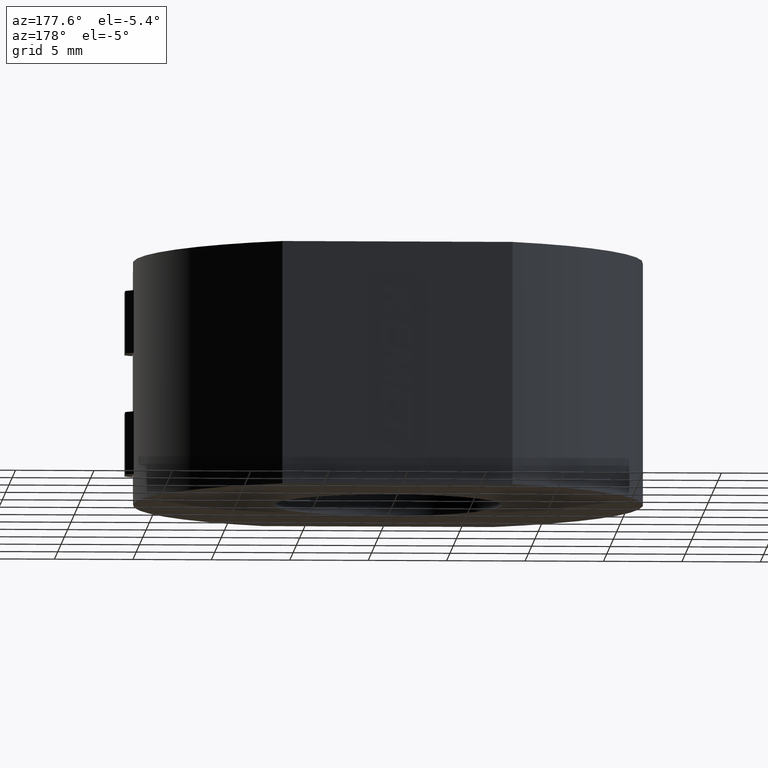
[diagram: clean part render]
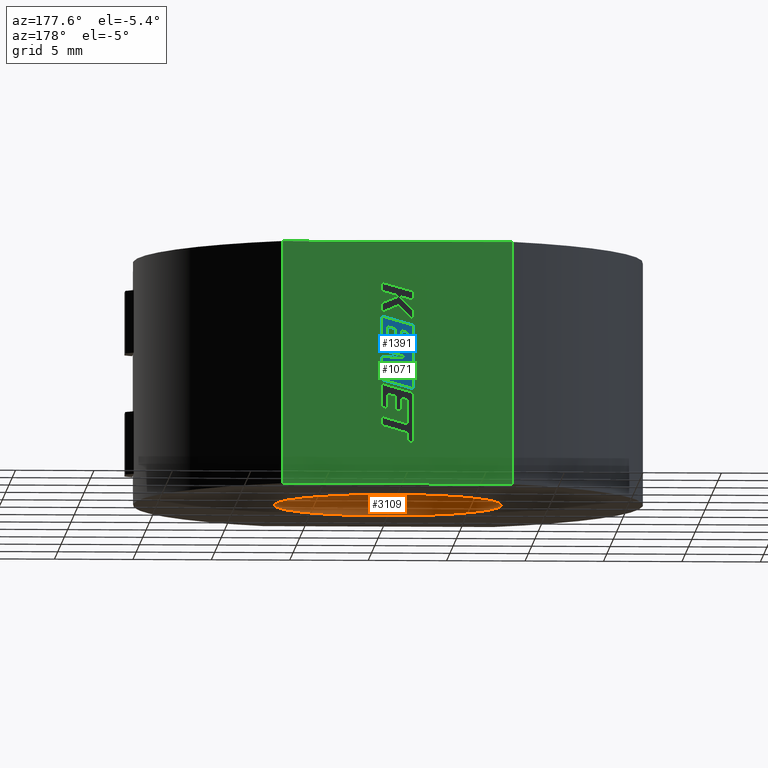
[diagram: same view with three faces highlighted in distinct colors, each labeled with its STEP entity id]
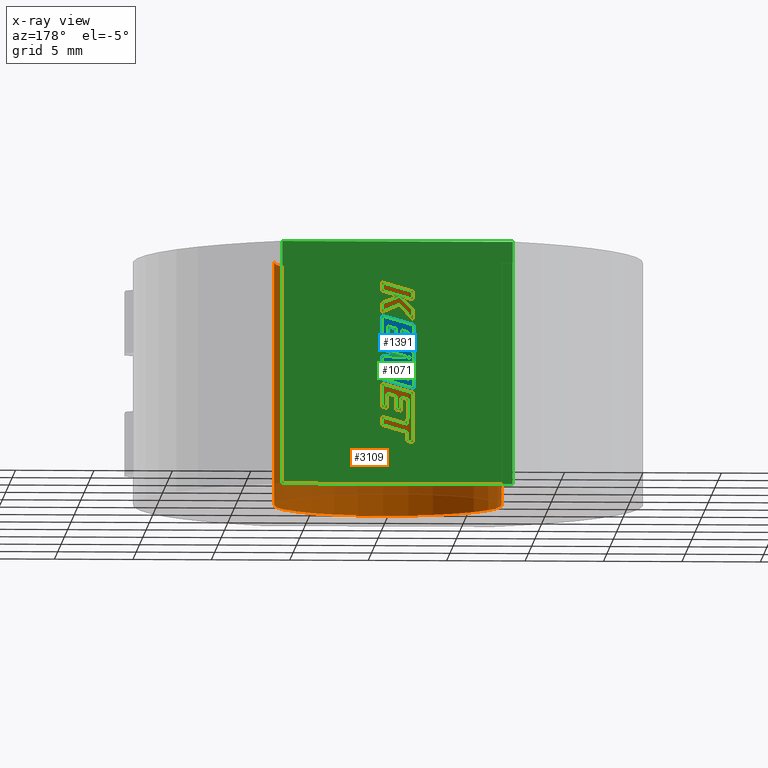
[diagram: x-ray of the same camera — body ghosted, the three highlighted faces saturated]
A machine part, auxiliary view with three faces highlighted in distinct colors.
The next image is the same camera in x-ray (body ghosted, the three faces saturated) — at least one of them is partly hidden behind the body in this view.
Their STEP definitions:

[orange] entity #3109 — the highlighted cylindrical surface (partial cylindrical patch) has radius 7.25 mm, axis along (-0, -0, 1).
#21 = VERTEX_POINT ( 'NONE', #654 ) ;
#174 = AXIS2_PLACEMENT_3D ( 'NONE', #1175, #1947, #514 ) ;
#180 = DIRECTION ( 'NONE',  ( 0.0000000000000000000, 0.0000000000000000000, 1.000000000000000000 ) ) ;
#189 = VECTOR ( 'NONE', #1733, 1000.000000000000000 ) ;
#244 = ORIENTED_EDGE ( 'NONE', *, *, #2995, .T. ) ;
#325 = EDGE_CURVE ( 'NONE', #21, #2164, #2602, .T. ) ;
#394 = VERTEX_POINT ( 'NONE', #2286 ) ;
#497 = FACE_OUTER_BOUND ( 'NONE', #1165, .T. ) ;
#514 = DIRECTION ( 'NONE',  ( 1.000000000000000000, 0.0000000000000000000, 0.0000000000000000000 ) ) ;
#654 = CARTESIAN_POINT ( 'NONE',  ( -7.249993103444997400, -0.01000000000000000000, -7.750000000000000000 ) ) ;
#672 = DIRECTION ( 'NONE',  ( -0.0000000000000000000, -0.0000000000000000000, 1.000000000000000000 ) ) ;
#795 = LINE ( 'NONE', #1464, #189 ) ;
#825 = ORIENTED_EDGE ( 'NONE', *, *, #2112, .T. ) ;
#1083 = AXIS2_PLACEMENT_3D ( 'NONE', #2085, #180, #1294 ) ;
#1165 = EDGE_LOOP ( 'NONE', ( #244, #2049, #2525, #825 ) ) ;
#1169 = LINE ( 'NONE', #2131, #1773 ) ;
#1175 = CARTESIAN_POINT ( 'NONE',  ( 0.0000000000000000000, 0.0000000000000000000, -7.750000000000000000 ) ) ;
#1294 = DIRECTION ( 'NONE',  ( 1.000000000000000000, 0.0000000000000000000, 0.0000000000000000000 ) ) ;
#1441 = CYLINDRICAL_SURFACE ( 'NONE', #174, 7.250000000000000900 ) ;
#1460 = EDGE_CURVE ( 'NONE', #3015, #2164, #795, .T. ) ;
#1464 = CARTESIAN_POINT ( 'NONE',  ( 7.249993103444997400, -0.01000000000000000000, -7.750000000000000000 ) ) ;
#1623 = DIRECTION ( 'NONE',  ( 0.0000000000000000000, 0.0000000000000000000, 1.000000000000000000 ) ) ;
#1733 = DIRECTION ( 'NONE',  ( 0.0000000000000000000, 0.0000000000000000000, -1.000000000000000000 ) ) ;
#1773 = VECTOR ( 'NONE', #672, 1000.000000000000000 ) ;
#1888 = DIRECTION ( 'NONE',  ( 1.000000000000000000, 0.0000000000000000000, 0.0000000000000000000 ) ) ;
#1947 = DIRECTION ( 'NONE',  ( -0.0000000000000000000, -0.0000000000000000000, 1.000000000000000000 ) ) ;
#2049 = ORIENTED_EDGE ( 'NONE', *, *, #1460, .T. ) ;
#2085 = CARTESIAN_POINT ( 'NONE',  ( 0.0000000000000000000, 0.0000000000000000000, -7.750000000000000000 ) ) ;
#2112 = EDGE_CURVE ( 'NONE', #21, #394, #1169, .T. ) ;
#2131 = CARTESIAN_POINT ( 'NONE',  ( -7.249993103444997400, -0.01000000000000000000, -7.750000000000000000 ) ) ;
#2164 = VERTEX_POINT ( 'NONE', #2461 ) ;
#2286 = CARTESIAN_POINT ( 'NONE',  ( -7.249993103444997400, -0.01000000000000000000, 7.750000000000000000 ) ) ;
#2322 = AXIS2_PLACEMENT_3D ( 'NONE', #2624, #1623, #1888 ) ;
#2461 = CARTESIAN_POINT ( 'NONE',  ( 7.249993103444997400, -0.01000000000000000000, -7.750000000000000000 ) ) ;
#2525 = ORIENTED_EDGE ( 'NONE', *, *, #325, .F. ) ;
#2595 = CARTESIAN_POINT ( 'NONE',  ( 7.249993103444997400, -0.01000000000000000000, 7.750000000000000000 ) ) ;
#2602 = CIRCLE ( 'NONE', #1083, 7.250000000000000900 ) ;
#2624 = CARTESIAN_POINT ( 'NONE',  ( 0.0000000000000000000, 0.0000000000000000000, 7.750000000000000000 ) ) ;
#2750 = CIRCLE ( 'NONE', #2322, 7.250000000000000900 ) ;
#2995 = EDGE_CURVE ( 'NONE', #394, #3015, #2750, .T. ) ;
#3015 = VERTEX_POINT ( 'NONE', #2595 ) ;
#3109 = ADVANCED_FACE ( 'NONE', ( #497 ), #1441, .F. ) ;

[blue] entity #1391 — the highlighted planar face has unit normal (0, -1, 0).
#5 = DIRECTION ( 'NONE',  ( -0.8843386665637480400, 0.0000000000000000000, -0.4668459304955458500 ) ) ;
#24 = EDGE_CURVE ( 'NONE', #889, #1449, #2173, .T. ) ;
#30 = ORIENTED_EDGE ( 'NONE', *, *, #797, .T. ) ;
#83 = LINE ( 'NONE', #2355, #2572 ) ;
#86 = VERTEX_POINT ( 'NONE', #3073 ) ;
#88 = LINE ( 'NONE', #1852, #608 ) ;
#159 = LINE ( 'NONE', #1498, #2292 ) ;
#164 = VERTEX_POINT ( 'NONE', #1387 ) ;
#166 = LINE ( 'NONE', #2370, #2611 ) ;
#173 = ORIENTED_EDGE ( 'NONE', *, *, #2711, .T. ) ;
#204 = EDGE_CURVE ( 'NONE', #2577, #1924, #1793, .T. ) ;
#225 = ORIENTED_EDGE ( 'NONE', *, *, #1748, .T. ) ;
#248 = CARTESIAN_POINT ( 'NONE',  ( -0.7957143564223869700, 14.50100307692278500, -1.094137763419983400 ) ) ;
#269 = CARTESIAN_POINT ( 'NONE',  ( 1.007855826643659500, 14.50100307692278500, -1.088546913478903900 ) ) ;
#317 = CARTESIAN_POINT ( 'NONE',  ( 1.007855826643659500, 14.50100307692278500, -1.088546913478903900 ) ) ;
#324 = ORIENTED_EDGE ( 'NONE', *, *, #1921, .T. ) ;
#329 = DIRECTION ( 'NONE',  ( 0.0000000000000000000, -0.0000000000000000000, -1.000000000000000000 ) ) ;
#340 = EDGE_CURVE ( 'NONE', #1993, #889, #2938, .T. ) ;
#375 = CARTESIAN_POINT ( 'NONE',  ( -0.6245313588817764700, 14.50100307692278500, 1.940185694840126200 ) ) ;
#399 = EDGE_CURVE ( 'NONE', #1084, #445, #2026, .T. ) ;
#404 = DIRECTION ( 'NONE',  ( 0.9984327301130230300, 0.0000000000000000000, 0.05596501978071044500 ) ) ;
#415 = CARTESIAN_POINT ( 'NONE',  ( -0.2495275512025849600, 14.50100307692278500, 1.183949676477196200 ) ) ;
#445 = VERTEX_POINT ( 'NONE', #1896 ) ;
#448 = ORIENTED_EDGE ( 'NONE', *, *, #1306, .T. ) ;
#468 = CARTESIAN_POINT ( 'NONE',  ( 0.6242818345106383400, 14.50100307692278500, 2.298416952705240500 ) ) ;
#496 = CARTESIAN_POINT ( 'NONE',  ( -1.008295390866697200, 14.50100307692278500, -0.1470968788655744900 ) ) ;
#504 = CARTESIAN_POINT ( 'NONE',  ( -0.7870706081621163800, 14.50100307692278500, 0.2948512794877773400 ) ) ;
#516 = EDGE_CURVE ( 'NONE', #1449, #2084, #1022, .T. ) ;
#532 = LINE ( 'NONE', #1777, #3016 ) ;
#535 = LINE ( 'NONE', #2020, #2647 ) ;
#546 = DIRECTION ( 'NONE',  ( -0.9619530280415625700, 0.0000000000000000000, -0.2732148821745782900 ) ) ;
#556 = VERTEX_POINT ( 'NONE', #1658 ) ;
#574 = DIRECTION ( 'NONE',  ( 0.9610853065513875700, 0.0000000000000000000, 0.2762517575166268400 ) ) ;
#578 = DIRECTION ( 'NONE',  ( -0.9615454294334484500, 0.0000000000000000000, -0.2746459304916877300 ) ) ;
#608 = VECTOR ( 'NONE', #948, 1000.000000000000000 ) ;
#614 = CARTESIAN_POINT ( 'NONE',  ( -1.008295390866697200, 14.50100307692278500, 0.9126095447852117200 ) ) ;
#634 = LINE ( 'NONE', #1508, #1514 ) ;
#645 = CARTESIAN_POINT ( 'NONE',  ( -1.008295390866697000, 14.50100307692278500, 2.402074498369834100 ) ) ;
#650 = DIRECTION ( 'NONE',  ( 1.455827704943588000E-016, 0.0000000000000000000, 1.000000000000000000 ) ) ;
#722 = EDGE_CURVE ( 'NONE', #86, #2577, #159, .T. ) ;
#733 = EDGE_CURVE ( 'NONE', #2562, #1202, #535, .T. ) ;
#740 = DIRECTION ( 'NONE',  ( 0.0000000000000000000, -1.000000000000000000, 0.0000000000000000000 ) ) ;
#773 = VECTOR ( 'NONE', #2773, 999.9999999999998900 ) ;
#797 = EDGE_CURVE ( 'NONE', #2237, #3017, #634, .T. ) ;
#816 = VERTEX_POINT ( 'NONE', #1576 ) ;
#819 = VECTOR ( 'NONE', #1108, 1000.000000000000100 ) ;
#839 = VERTEX_POINT ( 'NONE', #1605 ) ;
#851 = ORIENTED_EDGE ( 'NONE', *, *, #2522, .T. ) ;
#880 = DIRECTION ( 'NONE',  ( 0.0000000000000000000, 0.0000000000000000000, 1.000000000000000000 ) ) ;
#882 = CARTESIAN_POINT ( 'NONE',  ( 1.007855826643659900, 14.50100307692278500, 0.3954620571587517100 ) ) ;
#889 = VERTEX_POINT ( 'NONE', #1101 ) ;
#904 = DIRECTION ( 'NONE',  ( -5.979674709941019000E-016, 0.0000000000000000000, -1.000000000000000000 ) ) ;
#909 = CARTESIAN_POINT ( 'NONE',  ( 0.6242818345106383400, 14.50100307692278500, 1.180774171801569000 ) ) ;
#920 = DIRECTION ( 'NONE',  ( -6.265376399090014200E-017, 0.0000000000000000000, -1.000000000000000000 ) ) ;
#935 = VECTOR ( 'NONE', #1014, 1000.000000000000000 ) ;
#940 = DIRECTION ( 'NONE',  ( -0.9611638845408858600, 0.0000000000000000000, -0.2759782365591073000 ) ) ;
#948 = DIRECTION ( 'NONE',  ( 0.0000000000000000000, 0.0000000000000000000, -1.000000000000000000 ) ) ;
#978 = EDGE_CURVE ( 'NONE', #839, #816, #1489, .T. ) ;
#999 = VERTEX_POINT ( 'NONE', #317 ) ;
#1014 = DIRECTION ( 'NONE',  ( -4.232393926185534800E-016, 0.0000000000000000000, -1.000000000000000000 ) ) ;
#1017 = VECTOR ( 'NONE', #1501, 1000.000000000000000 ) ;
#1022 = LINE ( 'NONE', #1419, #2019 ) ;
#1076 = ORIENTED_EDGE ( 'NONE', *, *, #978, .T. ) ;
#1084 = VERTEX_POINT ( 'NONE', #2204 ) ;
#1085 = VECTOR ( 'NONE', #880, 1000.000000000000000 ) ;
#1101 = CARTESIAN_POINT ( 'NONE',  ( 1.007855826643659900, 14.50100307692278500, 0.3954620571587517100 ) ) ;
#1103 = VECTOR ( 'NONE', #940, 1000.000000000000000 ) ;
#1108 = DIRECTION ( 'NONE',  ( -0.9617234872620604700, 0.0000000000000000000, -0.2740217765954041100 ) ) ;
#1166 = DIRECTION ( 'NONE',  ( 0.0000000000000000000, 0.0000000000000000000, 1.000000000000000000 ) ) ;
#1177 = CARTESIAN_POINT ( 'NONE',  ( -1.008295390866697200, 14.50100307692278500, -0.1470968788655744900 ) ) ;
#1202 = VERTEX_POINT ( 'NONE', #2576 ) ;
#1213 = LINE ( 'NONE', #3003, #773 ) ;
#1229 = PLANE ( 'NONE',  #1569 ) ;
#1306 = EDGE_CURVE ( 'NONE', #556, #1962, #166, .T. ) ;
#1325 = VECTOR ( 'NONE', #1334, 1000.000000000000000 ) ;
#1330 = ORIENTED_EDGE ( 'NONE', *, *, #2575, .T. ) ;
#1334 = DIRECTION ( 'NONE',  ( -4.034331580539942400E-016, 0.0000000000000000000, -1.000000000000000000 ) ) ;
#1342 = ORIENTED_EDGE ( 'NONE', *, *, #2809, .T. ) ;
#1387 = CARTESIAN_POINT ( 'NONE',  ( -0.2495275512025849600, 14.50100307692278500, 2.049305353783113400 ) ) ;
#1391 = ADVANCED_FACE ( 'NONE', ( #1866 ), #1229, .F. ) ;
#1419 = CARTESIAN_POINT ( 'NONE',  ( 1.007855826643659700, 14.50100307692278500, -0.1420258269384687400 ) ) ;
#1440 = CARTESIAN_POINT ( 'NONE',  ( 1.007855826643659700, 14.50100307692278500, -0.5762117237993141800 ) ) ;
#1449 = VERTEX_POINT ( 'NONE', #2702 ) ;
#1456 = VECTOR ( 'NONE', #546, 1000.000000000000100 ) ;
#1470 = EDGE_CURVE ( 'NONE', #164, #2833, #2732, .T. ) ;
#1489 = LINE ( 'NONE', #2460, #1456 ) ;
#1498 = CARTESIAN_POINT ( 'NONE',  ( -1.008295390866697200, 14.50100307692278500, 0.7115105958028727900 ) ) ;
#1501 = DIRECTION ( 'NONE',  ( -0.9601763114327603900, 0.0000000000000000000, -0.2793947940878260800 ) ) ;
#1508 = CARTESIAN_POINT ( 'NONE',  ( 0.4320689432876857500, 14.50100307692278500, -0.06956146822632340600 ) ) ;
#1514 = VECTOR ( 'NONE', #2325, 1000.000000000000100 ) ;
#1538 = EDGE_CURVE ( 'NONE', #2958, #164, #1670, .T. ) ;
#1562 = LINE ( 'NONE', #1440, #935 ) ;
#1569 = AXIS2_PLACEMENT_3D ( 'NONE', #2953, #740, #329 ) ;
#1576 = CARTESIAN_POINT ( 'NONE',  ( -1.008295390866697200, 14.50100307692278500, 0.9126095447852117200 ) ) ;
#1605 = CARTESIAN_POINT ( 'NONE',  ( -0.6245313588817764700, 14.50100307692278500, 1.021606597370061000 ) ) ;
#1614 = DIRECTION ( 'NONE',  ( 0.9611542233438611400, 0.0000000000000000000, 0.2760118818968834200 ) ) ;
#1635 = ORIENTED_EDGE ( 'NONE', *, *, #722, .T. ) ;
#1643 = ORIENTED_EDGE ( 'NONE', *, *, #340, .T. ) ;
#1651 = ORIENTED_EDGE ( 'NONE', *, *, #2065, .T. ) ;
#1658 = CARTESIAN_POINT ( 'NONE',  ( 0.1231896478935989000, 14.50100307692278500, 2.155641848391435500 ) ) ;
#1669 = CARTESIAN_POINT ( 'NONE',  ( 1.007855826643660100, 14.50100307692278500, 0.8102271068552818800 ) ) ;
#1670 = LINE ( 'NONE', #2744, #3091 ) ;
#1673 = LINE ( 'NONE', #645, #2025 ) ;
#1709 = VECTOR ( 'NONE', #904, 1000.000000000000000 ) ;
#1748 = EDGE_CURVE ( 'NONE', #1202, #2237, #1213, .T. ) ;
#1749 = LINE ( 'NONE', #1669, #1103 ) ;
#1765 = ORIENTED_EDGE ( 'NONE', *, *, #3125, .T. ) ;
#1777 = CARTESIAN_POINT ( 'NONE',  ( 0.1231896478935988500, 14.50100307692278500, 1.290408777443794900 ) ) ;
#1793 = LINE ( 'NONE', #909, #2746 ) ;
#1822 = VERTEX_POINT ( 'NONE', #2375 ) ;
#1848 = LINE ( 'NONE', #2333, #819 ) ;
#1852 = CARTESIAN_POINT ( 'NONE',  ( -0.6245313588817764700, 14.50100307692278500, 1.940185694840126200 ) ) ;
#1866 = FACE_OUTER_BOUND ( 'NONE', #2689, .T. ) ;
#1873 = CARTESIAN_POINT ( 'NONE',  ( 1.007855826643661200, 14.50100307692278500, 2.982241657430926700 ) ) ;
#1896 = CARTESIAN_POINT ( 'NONE',  ( 1.007855826643660100, 14.50100307692278500, 0.8102271068552818800 ) ) ;
#1921 = EDGE_CURVE ( 'NONE', #1822, #1084, #1673, .T. ) ;
#1924 = VERTEX_POINT ( 'NONE', #468 ) ;
#1943 = CARTESIAN_POINT ( 'NONE',  ( 0.4320689432876857500, 14.50100307692278500, -0.06956146822632340600 ) ) ;
#1962 = VERTEX_POINT ( 'NONE', #2889 ) ;
#1993 = VERTEX_POINT ( 'NONE', #504 ) ;
#2019 = VECTOR ( 'NONE', #5, 1000.000000000000000 ) ;
#2020 = CARTESIAN_POINT ( 'NONE',  ( -1.008295390866697400, 14.50100307692278500, -1.668205254533706300 ) ) ;
#2025 = VECTOR ( 'NONE', #2359, 1000.000000000000200 ) ;
#2026 = LINE ( 'NONE', #1873, #1709 ) ;
#2065 = EDGE_CURVE ( 'NONE', #445, #1993, #1749, .T. ) ;
#2071 = ORIENTED_EDGE ( 'NONE', *, *, #204, .T. ) ;
#2084 = VERTEX_POINT ( 'NONE', #248 ) ;
#2132 = ORIENTED_EDGE ( 'NONE', *, *, #516, .T. ) ;
#2173 = LINE ( 'NONE', #882, #1325 ) ;
#2204 = CARTESIAN_POINT ( 'NONE',  ( 1.007855826643661200, 14.50100307692278500, 2.982241657430926700 ) ) ;
#2218 = ORIENTED_EDGE ( 'NONE', *, *, #24, .T. ) ;
#2223 = CARTESIAN_POINT ( 'NONE',  ( -0.2495275512025849600, 14.50100307692278500, 2.049305353783113400 ) ) ;
#2237 = VERTEX_POINT ( 'NONE', #1943 ) ;
#2270 = DIRECTION ( 'NONE',  ( 0.0000000000000000000, 0.0000000000000000000, 1.000000000000000000 ) ) ;
#2271 = ORIENTED_EDGE ( 'NONE', *, *, #733, .T. ) ;
#2292 = VECTOR ( 'NONE', #574, 1000.000000000000200 ) ;
#2325 = DIRECTION ( 'NONE',  ( -0.9985542843760937300, 0.0000000000000000000, -0.05375259206910176800 ) ) ;
#2333 = CARTESIAN_POINT ( 'NONE',  ( 0.6242818345106383400, 14.50100307692278500, 2.298416952705240500 ) ) ;
#2349 = VECTOR ( 'NONE', #650, 1000.000000000000000 ) ;
#2355 = CARTESIAN_POINT ( 'NONE',  ( -0.7957143564223869700, 14.50100307692278500, -1.094137763419983400 ) ) ;
#2359 = DIRECTION ( 'NONE',  ( 0.9610029908221288100, 0.0000000000000000000, 0.2765379750249923300 ) ) ;
#2370 = CARTESIAN_POINT ( 'NONE',  ( 0.1231896478935989000, 14.50100307692278500, 2.155641848391435500 ) ) ;
#2375 = CARTESIAN_POINT ( 'NONE',  ( -1.008295390866697000, 14.50100307692278500, 2.402074498369834100 ) ) ;
#2423 = LINE ( 'NONE', #1177, #1085 ) ;
#2435 = DIRECTION ( 'NONE',  ( -0.9610674221107120600, 0.0000000000000000000, -0.2763139702538950400 ) ) ;
#2442 = CARTESIAN_POINT ( 'NONE',  ( 0.6242818345106383400, 14.50100307692278500, 1.180774171801569000 ) ) ;
#2452 = ORIENTED_EDGE ( 'NONE', *, *, #2853, .T. ) ;
#2460 = CARTESIAN_POINT ( 'NONE',  ( -0.6245313588817764700, 14.50100307692278500, 1.021606597370061000 ) ) ;
#2512 = EDGE_CURVE ( 'NONE', #3017, #86, #2423, .T. ) ;
#2522 = EDGE_CURVE ( 'NONE', #2833, #839, #88, .T. ) ;
#2562 = VERTEX_POINT ( 'NONE', #2925 ) ;
#2572 = VECTOR ( 'NONE', #1614, 1000.000000000000100 ) ;
#2575 = EDGE_CURVE ( 'NONE', #999, #2562, #2690, .T. ) ;
#2576 = CARTESIAN_POINT ( 'NONE',  ( -1.008295390866697400, 14.50100307692278500, -0.7839350429359057700 ) ) ;
#2577 = VERTEX_POINT ( 'NONE', #2442 ) ;
#2604 = ORIENTED_EDGE ( 'NONE', *, *, #2512, .T. ) ;
#2611 = VECTOR ( 'NONE', #920, 1000.000000000000000 ) ;
#2647 = VECTOR ( 'NONE', #2270, 1000.000000000000000 ) ;
#2671 = CARTESIAN_POINT ( 'NONE',  ( 1.007855826643659700, 14.50100307692278500, -0.5762117237993141800 ) ) ;
#2677 = VECTOR ( 'NONE', #404, 1000.000000000000100 ) ;
#2685 = ORIENTED_EDGE ( 'NONE', *, *, #2936, .T. ) ;
#2689 = EDGE_LOOP ( 'NONE', ( #2271, #225, #30, #2604, #1635, #2071, #1342, #448, #173, #3023, #2928, #851, #1076, #2452, #324, #2761, #1651, #1643, #2218, #2132, #2685, #1765, #1330 ) ) ;
#2690 = LINE ( 'NONE', #269, #2986 ) ;
#2702 = CARTESIAN_POINT ( 'NONE',  ( 1.007855826643659700, 14.50100307692278500, -0.1420258269384687400 ) ) ;
#2711 = EDGE_CURVE ( 'NONE', #1962, #2958, #532, .T. ) ;
#2732 = LINE ( 'NONE', #2223, #1017 ) ;
#2744 = CARTESIAN_POINT ( 'NONE',  ( -0.2495275512025849600, 14.50100307692278500, 1.183949676477196200 ) ) ;
#2746 = VECTOR ( 'NONE', #1166, 1000.000000000000000 ) ;
#2761 = ORIENTED_EDGE ( 'NONE', *, *, #399, .T. ) ;
#2773 = DIRECTION ( 'NONE',  ( 0.8958676361826938300, 0.0000000000000000000, 0.4443210308329245700 ) ) ;
#2809 = EDGE_CURVE ( 'NONE', #1924, #556, #1848, .T. ) ;
#2833 = VERTEX_POINT ( 'NONE', #375 ) ;
#2853 = EDGE_CURVE ( 'NONE', #816, #1822, #3063, .T. ) ;
#2889 = CARTESIAN_POINT ( 'NONE',  ( 0.1231896478935988500, 14.50100307692278500, 1.290408777443794900 ) ) ;
#2925 = CARTESIAN_POINT ( 'NONE',  ( -1.008295390866697400, 14.50100307692278500, -1.668205254533706300 ) ) ;
#2928 = ORIENTED_EDGE ( 'NONE', *, *, #1470, .T. ) ;
#2936 = EDGE_CURVE ( 'NONE', #2084, #3099, #83, .T. ) ;
#2938 = LINE ( 'NONE', #3007, #2677 ) ;
#2953 = CARTESIAN_POINT ( 'NONE',  ( -6.442598288191533000E-019, 14.50100307692278500, 0.0000000000000000000 ) ) ;
#2958 = VERTEX_POINT ( 'NONE', #415 ) ;
#2986 = VECTOR ( 'NONE', #2435, 1000.000000000000000 ) ;
#2996 = DIRECTION ( 'NONE',  ( 0.0000000000000000000, 0.0000000000000000000, 1.000000000000000000 ) ) ;
#3003 = CARTESIAN_POINT ( 'NONE',  ( -1.008295390866697400, 14.50100307692278500, -0.7839350429359057700 ) ) ;
#3007 = CARTESIAN_POINT ( 'NONE',  ( -0.7870706081621163800, 14.50100307692278500, 0.2948512794877773400 ) ) ;
#3016 = VECTOR ( 'NONE', #578, 1000.000000000000100 ) ;
#3017 = VERTEX_POINT ( 'NONE', #496 ) ;
#3023 = ORIENTED_EDGE ( 'NONE', *, *, #1538, .T. ) ;
#3063 = LINE ( 'NONE', #614, #2349 ) ;
#3073 = CARTESIAN_POINT ( 'NONE',  ( -1.008295390866697200, 14.50100307692278500, 0.7115105958028727900 ) ) ;
#3091 = VECTOR ( 'NONE', #2996, 1000.000000000000000 ) ;
#3099 = VERTEX_POINT ( 'NONE', #2671 ) ;
#3125 = EDGE_CURVE ( 'NONE', #3099, #999, #1562, .T. ) ;

[green] entity #1071 — the highlighted planar face has unit normal (0, -1, 0).
#1 = ORIENTED_EDGE ( 'NONE', *, *, #1036, .F. ) ;
#3 = ORIENTED_EDGE ( 'NONE', *, *, #1199, .F. ) ;
#4 = VECTOR ( 'NONE', #1056, 1000.000000000000000 ) ;
#12 = VERTEX_POINT ( 'NONE', #2321 ) ;
#22 = CARTESIAN_POINT ( 'NONE',  ( -1.008295390866697200, 14.50000307692278600, -0.1470968788655744900 ) ) ;
#31 = DIRECTION ( 'NONE',  ( -4.034331580539942400E-016, 0.0000000000000000000, -1.000000000000000000 ) ) ;
#34 = CARTESIAN_POINT ( 'NONE',  ( 1.007855826643660100, 14.50000307692278600, 2.982241657430927600 ) ) ;
#36 = CARTESIAN_POINT ( 'NONE',  ( 7.335701109589304100, 14.50000307692278600, -7.750000000000000000 ) ) ;
#38 = LINE ( 'NONE', #3008, #1257 ) ;
#42 = CARTESIAN_POINT ( 'NONE',  ( -1.008295390866697400, 14.50000307692278600, -1.668205254533706300 ) ) ;
#47 = EDGE_LOOP ( 'NONE', ( #2298, #2730, #1047, #742, #823, #2573, #3110, #592, #503, #1949, #1677, #606, #531, #1, #1431, #2360, #1647, #1956, #1222, #1672, #458, #980, #130 ) ) ;
#65 = EDGE_CURVE ( 'NONE', #198, #3013, #1244, .T. ) ;
#74 = VECTOR ( 'NONE', #226, 1000.000000000000100 ) ;
#75 = VERTEX_POINT ( 'NONE', #2578 ) ;
#111 = LINE ( 'NONE', #589, #2974 ) ;
#115 = LINE ( 'NONE', #1638, #2183 ) ;
#116 = EDGE_CURVE ( 'NONE', #2873, #2493, #2941, .T. ) ;
#130 = ORIENTED_EDGE ( 'NONE', *, *, #1960, .F. ) ;
#150 = CARTESIAN_POINT ( 'NONE',  ( -1.008295390866697000, 14.50000307692278600, 2.402074498369835400 ) ) ;
#154 = VERTEX_POINT ( 'NONE', #668 ) ;
#165 = VECTOR ( 'NONE', #666, 1000.000000000000000 ) ;
#172 = VERTEX_POINT ( 'NONE', #2138 ) ;
#182 = CARTESIAN_POINT ( 'NONE',  ( 0.6242082707007959900, 14.50000307692278600, -2.963308478527717900 ) ) ;
#191 = LINE ( 'NONE', #2178, #1314 ) ;
#198 = VERTEX_POINT ( 'NONE', #692 ) ;
#199 = VECTOR ( 'NONE', #1904, 999.9999999999998900 ) ;
#203 = DIRECTION ( 'NONE',  ( -0.0000000000000000000, -0.0000000000000000000, 1.000000000000000000 ) ) ;
#206 = ORIENTED_EDGE ( 'NONE', *, *, #1468, .F. ) ;
#207 = CARTESIAN_POINT ( 'NONE',  ( 1.007855826643659900, 14.50000307692278600, 0.3954620571587526000 ) ) ;
#211 = EDGE_CURVE ( 'NONE', #2296, #796, #1507, .T. ) ;
#213 = ORIENTED_EDGE ( 'NONE', *, *, #2022, .F. ) ;
#221 = CARTESIAN_POINT ( 'NONE',  ( 0.1231896478978055500, 14.50000307692278600, -3.022380221986122000 ) ) ;
#222 = EDGE_CURVE ( 'NONE', #2159, #937, #1986, .T. ) ;
#224 = CARTESIAN_POINT ( 'NONE',  ( -0.1485305635104892700, 14.50000307692278600, 4.240087956160163400 ) ) ;
#226 = DIRECTION ( 'NONE',  ( 7.938847109656414900E-005, 0.0000000000000000000, -0.9999999968487352000 ) ) ;
#238 = VECTOR ( 'NONE', #2053, 1000.000000000000100 ) ;
#241 = EDGE_CURVE ( 'NONE', #1029, #2579, #1912, .T. ) ;
#254 = CARTESIAN_POINT ( 'NONE',  ( -0.6245313588817762400, 14.50000307692278600, 1.021606597370061000 ) ) ;
#256 = VECTOR ( 'NONE', #311, 1000.000000000000000 ) ;
#259 = LINE ( 'NONE', #1235, #2933 ) ;
#261 = DIRECTION ( 'NONE',  ( 0.004650693823706968100, 0.0000000000000000000, -0.9999891854650019300 ) ) ;
#263 = LINE ( 'NONE', #1794, #1429 ) ;
#266 = VECTOR ( 'NONE', #854, 1000.000000000000200 ) ;
#286 = LINE ( 'NONE', #1681, #1615 ) ;
#288 = VECTOR ( 'NONE', #334, 1000.000000000000000 ) ;
#299 = EDGE_CURVE ( 'NONE', #172, #975, #2372, .T. ) ;
#306 = CARTESIAN_POINT ( 'NONE',  ( -0.6189702500258189600, 14.50000307692278600, -5.035778047153456800 ) ) ;
#311 = DIRECTION ( 'NONE',  ( 0.0000000000000000000, 0.0000000000000000000, 1.000000000000000000 ) ) ;
#315 = VECTOR ( 'NONE', #1115, 1000.000000000000100 ) ;
#326 = LINE ( 'NONE', #2550, #2799 ) ;
#328 = FACE_BOUND ( 'NONE', #2434, .T. ) ;
#334 = DIRECTION ( 'NONE',  ( -0.0000000000000000000, -0.0000000000000000000, 1.000000000000000000 ) ) ;
#341 = CARTESIAN_POINT ( 'NONE',  ( -0.08685956524672691600, 14.50000307692278600, 3.660944563424069800 ) ) ;
#345 = LINE ( 'NONE', #1401, #2899 ) ;
#349 = CARTESIAN_POINT ( 'NONE',  ( 1.007855826643659900, 14.50000307692278600, -1.331184896673371900 ) ) ;
#362 = CARTESIAN_POINT ( 'NONE',  ( 1.007855826643659900, 14.50000307692278600, 3.207178431133013200 ) ) ;
#366 = VERTEX_POINT ( 'NONE', #2061 ) ;
#374 = CARTESIAN_POINT ( 'NONE',  ( 1.007855826643659900, 14.50000307692278600, 4.573810204594569700 ) ) ;
#383 = CARTESIAN_POINT ( 'NONE',  ( -0.08685956524672930300, 14.50000307692278600, 4.260042142597027800 ) ) ;
#385 = DIRECTION ( 'NONE',  ( 3.782312588734364700E-016, -0.0000000000000000000, -1.000000000000000000 ) ) ;
#409 = VECTOR ( 'NONE', #2448, 1000.000000000000000 ) ;
#418 = LINE ( 'NONE', #2415, #3130 ) ;
#425 = ORIENTED_EDGE ( 'NONE', *, *, #299, .F. ) ;
#433 = VERTEX_POINT ( 'NONE', #2354 ) ;
#451 = ORIENTED_EDGE ( 'NONE', *, *, #1792, .F. ) ;
#458 = ORIENTED_EDGE ( 'NONE', *, *, #494, .F. ) ;
#460 = VERTEX_POINT ( 'NONE', #2820 ) ;
#463 = ORIENTED_EDGE ( 'NONE', *, *, #2106, .F. ) ;
#466 = ORIENTED_EDGE ( 'NONE', *, *, #1861, .F. ) ;
#483 = LINE ( 'NONE', #2707, #256 ) ;
#494 = EDGE_CURVE ( 'NONE', #2501, #1727, #1318, .T. ) ;
#503 = ORIENTED_EDGE ( 'NONE', *, *, #2273, .F. ) ;
#525 = VERTEX_POINT ( 'NONE', #1173 ) ;
#527 = VECTOR ( 'NONE', #2803, 1000.000000000000000 ) ;
#528 = CARTESIAN_POINT ( 'NONE',  ( 0.6242082707007959900, 14.50000307692278600, -2.014249440369576300 ) ) ;
#529 = CARTESIAN_POINT ( 'NONE',  ( -0.6244639253823844900, 14.50000307692278600, -2.372738171579177500 ) ) ;
#530 = EDGE_CURVE ( 'NONE', #1163, #1479, #2891, .T. ) ;
#531 = ORIENTED_EDGE ( 'NONE', *, *, #116, .F. ) ;
#545 = VERTEX_POINT ( 'NONE', #1916 ) ;
#548 = ORIENTED_EDGE ( 'NONE', *, *, #838, .F. ) ;
#549 = EDGE_CURVE ( 'NONE', #643, #1719, #191, .T. ) ;
#550 = CARTESIAN_POINT ( 'NONE',  ( 1.007855826643659900, 14.50000307692278600, 0.3954620571587517100 ) ) ;
#561 = VERTEX_POINT ( 'NONE', #2391 ) ;
#564 = EDGE_CURVE ( 'NONE', #2399, #525, #1499, .T. ) ;
#582 = CARTESIAN_POINT ( 'NONE',  ( -0.2494601177021121300, 14.50000307692278600, -2.263618512638548200 ) ) ;
#587 = LINE ( 'NONE', #1775, #1026 ) ;
#588 = ORIENTED_EDGE ( 'NONE', *, *, #530, .F. ) ;
#589 = CARTESIAN_POINT ( 'NONE',  ( -0.6245313588817764700, 14.50000307692278600, 1.021606597370061000 ) ) ;
#592 = ORIENTED_EDGE ( 'NONE', *, *, #1390, .F. ) ;
#604 = ORIENTED_EDGE ( 'NONE', *, *, #2336, .F. ) ;
#606 = ORIENTED_EDGE ( 'NONE', *, *, #1533, .F. ) ;
#607 = EDGE_CURVE ( 'NONE', #3101, #1019, #1906, .T. ) ;
#613 = CARTESIAN_POINT ( 'NONE',  ( -1.008295390866697600, 14.50000307692278600, -3.407805571745866000 ) ) ;
#625 = DIRECTION ( 'NONE',  ( -0.6995643972270441100, -0.0000000000000000000, -0.7145695586381793900 ) ) ;
#629 = EDGE_CURVE ( 'NONE', #1297, #198, #799, .T. ) ;
#636 = VERTEX_POINT ( 'NONE', #1491 ) ;
#643 = VERTEX_POINT ( 'NONE', #2724 ) ;
#648 = EDGE_CURVE ( 'NONE', #12, #758, #259, .T. ) ;
#657 = LINE ( 'NONE', #1215, #1618 ) ;
#659 = VECTOR ( 'NONE', #1223, 1000.000000000000000 ) ;
#665 = CARTESIAN_POINT ( 'NONE',  ( 0.4320689432876857500, 14.50000307692278600, -0.06956146822632340600 ) ) ;
#666 = DIRECTION ( 'NONE',  ( -4.232393926185534800E-016, 0.0000000000000000000, -1.000000000000000000 ) ) ;
#668 = CARTESIAN_POINT ( 'NONE',  ( 1.007855826643659700, 14.50000307692278600, -0.5762117237993139600 ) ) ;
#673 = VECTOR ( 'NONE', #2517, 1000.000000000000000 ) ;
#692 = CARTESIAN_POINT ( 'NONE',  ( 1.007855826643659500, 14.50000307692278600, -0.1420258269384691300 ) ) ;
#736 = VERTEX_POINT ( 'NONE', #341 ) ;
#742 = ORIENTED_EDGE ( 'NONE', *, *, #2408, .F. ) ;
#748 = LINE ( 'NONE', #2103, #2498 ) ;
#758 = VERTEX_POINT ( 'NONE', #2260 ) ;
#760 = DIRECTION ( 'NONE',  ( -0.9601763114327603900, 0.0000000000000000000, -0.2793947940878260800 ) ) ;
#796 = VERTEX_POINT ( 'NONE', #2740 ) ;
#799 = LINE ( 'NONE', #550, #877 ) ;
#808 = VERTEX_POINT ( 'NONE', #2992 ) ;
#813 = VERTEX_POINT ( 'NONE', #1092 ) ;
#817 = CARTESIAN_POINT ( 'NONE',  ( 0.0000000000000000000, 14.50000307692278600, -7.750000000000000000 ) ) ;
#823 = ORIENTED_EDGE ( 'NONE', *, *, #65, .F. ) ;
#824 = CARTESIAN_POINT ( 'NONE',  ( 0.6242818345106383400, 14.50000307692278600, 1.180774171801568500 ) ) ;
#833 = CARTESIAN_POINT ( 'NONE',  ( 1.007855826643659900, 14.50000307692278600, -1.331184896673371900 ) ) ;
#838 = EDGE_CURVE ( 'NONE', #1803, #736, #2868, .T. ) ;
#843 = CARTESIAN_POINT ( 'NONE',  ( -0.08685956524672676400, 14.50000307692278600, 3.660944563424068900 ) ) ;
#854 = DIRECTION ( 'NONE',  ( -0.9615825319869061300, 0.0000000000000000000, -0.2745159998572952500 ) ) ;
#859 = CARTESIAN_POINT ( 'NONE',  ( 1.007855826643659700, 14.50000307692278600, -0.1420258269384687400 ) ) ;
#863 = VECTOR ( 'NONE', #1975, 1000.000000000000000 ) ;
#869 = DIRECTION ( 'NONE',  ( 0.9280290862136819600, -0.0000000000000000000, -0.3725077383644515000 ) ) ;
#877 = VECTOR ( 'NONE', #31, 1000.000000000000000 ) ;
#902 = VECTOR ( 'NONE', #1054, 1000.000000000000000 ) ;
#908 = LINE ( 'NONE', #1492, #288 ) ;
#919 = ORIENTED_EDGE ( 'NONE', *, *, #2960, .F. ) ;
#936 = VERTEX_POINT ( 'NONE', #2709 ) ;
#937 = VERTEX_POINT ( 'NONE', #306 ) ;
#945 = CARTESIAN_POINT ( 'NONE',  ( 0.6242818345106383400, 14.50000307692278600, 1.180774171801569000 ) ) ;
#973 = CARTESIAN_POINT ( 'NONE',  ( 0.1231896478978056100, 14.50000307692278600, -2.157282018032665500 ) ) ;
#975 = VERTEX_POINT ( 'NONE', #2681 ) ;
#980 = ORIENTED_EDGE ( 'NONE', *, *, #1880, .F. ) ;
#982 = EDGE_CURVE ( 'NONE', #1182, #1297, #1413, .T. ) ;
#985 = CARTESIAN_POINT ( 'NONE',  ( 0.1231896478935986900, 14.50000307692278600, 1.290408777443794700 ) ) ;
#1002 = VERTEX_POINT ( 'NONE', #2198 ) ;
#1018 = CARTESIAN_POINT ( 'NONE',  ( 1.007855826643660100, 14.50000307692278600, 0.8102271068552818800 ) ) ;
#1019 = VERTEX_POINT ( 'NONE', #42 ) ;
#1026 = VECTOR ( 'NONE', #385, 1000.000000000000000 ) ;
#1029 = VERTEX_POINT ( 'NONE', #528 ) ;
#1032 = CARTESIAN_POINT ( 'NONE',  ( -1.008295390866697200, 14.50000307692278600, 0.7115105958028727900 ) ) ;
#1036 = EDGE_CURVE ( 'NONE', #460, #2873, #2959, .T. ) ;
#1038 = LINE ( 'NONE', #1372, #165 ) ;
#1042 = ORIENTED_EDGE ( 'NONE', *, *, #2791, .F. ) ;
#1047 = ORIENTED_EDGE ( 'NONE', *, *, #2991, .F. ) ;
#1054 = DIRECTION ( 'NONE',  ( -6.265376399090014200E-017, 0.0000000000000000000, -1.000000000000000000 ) ) ;
#1056 = DIRECTION ( 'NONE',  ( -0.0000000000000000000, -0.0000000000000000000, -1.000000000000000000 ) ) ;
#1060 = CARTESIAN_POINT ( 'NONE',  ( -0.6189702500258189600, 14.50000307692278600, -5.035778047153456800 ) ) ;
#1071 = ADVANCED_FACE ( 'NONE', ( #1133, #1346, #3072, #328 ), #2989, .F. ) ;
#1090 = VECTOR ( 'NONE', #1433, 1000.000000000000100 ) ;
#1092 = CARTESIAN_POINT ( 'NONE',  ( 1.007855826643659000, 14.50000307692278600, -2.854446292939952100 ) ) ;
#1093 = CARTESIAN_POINT ( 'NONE',  ( -1.008295390866697200, 14.50000307692278600, 3.993636915215540700 ) ) ;
#1097 = EDGE_CURVE ( 'NONE', #1853, #1803, #3104, .T. ) ;
#1102 = DIRECTION ( 'NONE',  ( -0.9985542843760937300, 0.0000000000000000000, -0.05375259206910176800 ) ) ;
#1112 = VECTOR ( 'NONE', #3139, 1000.000000000000100 ) ;
#1115 = DIRECTION ( 'NONE',  ( -0.9237839814038665300, -0.0000000000000000000, 0.3829140317377004400 ) ) ;
#1117 = VECTOR ( 'NONE', #2392, 1000.000000000000000 ) ;
#1120 = CARTESIAN_POINT ( 'NONE',  ( -1.008295390866697200, 14.50000307692278600, -0.7839350429359068800 ) ) ;
#1133 = FACE_BOUND ( 'NONE', #47, .T. ) ;
#1144 = VECTOR ( 'NONE', #1944, 1000.000000000000000 ) ;
#1147 = EDGE_CURVE ( 'NONE', #1234, #813, #2574, .T. ) ;
#1157 = DIRECTION ( 'NONE',  ( -0.0000000000000000000, -0.0000000000000000000, 1.000000000000000000 ) ) ;
#1162 = ORIENTED_EDGE ( 'NONE', *, *, #1147, .F. ) ;
#1163 = VERTEX_POINT ( 'NONE', #2537 ) ;
#1171 = DIRECTION ( 'NONE',  ( -0.9612861490927322400, -0.0000000000000000000, -0.2755520632520568900 ) ) ;
#1173 = CARTESIAN_POINT ( 'NONE',  ( -0.6244639253823844900, 14.50000307692278600, -2.372738171579177500 ) ) ;
#1182 = VERTEX_POINT ( 'NONE', #3045 ) ;
#1183 = LINE ( 'NONE', #2882, #1112 ) ;
#1185 = LINE ( 'NONE', #945, #1117 ) ;
#1189 = ORIENTED_EDGE ( 'NONE', *, *, #211, .T. ) ;
#1191 = ORIENTED_EDGE ( 'NONE', *, *, #1582, .F. ) ;
#1192 = DIRECTION ( 'NONE',  ( -0.9620200793798653300, 0.0000000000000000000, -0.2729786930695459200 ) ) ;
#1197 = VECTOR ( 'NONE', #1934, 1000.000000000000000 ) ;
#1198 = CARTESIAN_POINT ( 'NONE',  ( -0.2495275512025849600, 14.50000307692278600, 1.183949676477196200 ) ) ;
#1199 = EDGE_CURVE ( 'NONE', #366, #1853, #1520, .T. ) ;
#1215 = CARTESIAN_POINT ( 'NONE',  ( 7.335701109589304100, 14.50000307692278600, -7.750000000000000000 ) ) ;
#1220 = CARTESIAN_POINT ( 'NONE',  ( 1.007855826643659500, 14.50000307692278600, -1.088546913478903900 ) ) ;
#1222 = ORIENTED_EDGE ( 'NONE', *, *, #3061, .F. ) ;
#1223 = DIRECTION ( 'NONE',  ( 1.000000000000000000, 0.0000000000000000000, 0.0000000000000000000 ) ) ;
#1226 = CARTESIAN_POINT ( 'NONE',  ( 0.0000000000000000000, 14.50000307692278600, 7.750000000000000000 ) ) ;
#1234 = VERTEX_POINT ( 'NONE', #833 ) ;
#1235 = CARTESIAN_POINT ( 'NONE',  ( 1.007855826643659700, 14.50000307692278600, 5.147111404349876000 ) ) ;
#1244 = LINE ( 'NONE', #859, #527 ) ;
#1249 = LINE ( 'NONE', #221, #2904 ) ;
#1251 = VECTOR ( 'NONE', #3082, 1000.000000000000000 ) ;
#1257 = VECTOR ( 'NONE', #625, 999.9999999999998900 ) ;
#1259 = VECTOR ( 'NONE', #869, 999.9999999999998900 ) ;
#1286 = VERTEX_POINT ( 'NONE', #1891 ) ;
#1295 = VERTEX_POINT ( 'NONE', #2627 ) ;
#1297 = VERTEX_POINT ( 'NONE', #207 ) ;
#1302 = CARTESIAN_POINT ( 'NONE',  ( -1.008295390866697200, 14.50000307692278600, 0.7115105958028730100 ) ) ;
#1314 = VECTOR ( 'NONE', #2421, 1000.000000000000000 ) ;
#1318 = LINE ( 'NONE', #22, #1144 ) ;
#1329 = VECTOR ( 'NONE', #1807, 1000.000000000000000 ) ;
#1335 = EDGE_CURVE ( 'NONE', #1295, #460, #1442, .T. ) ;
#1346 = FACE_OUTER_BOUND ( 'NONE', #2129, .T. ) ;
#1353 = DIRECTION ( 'NONE',  ( 0.0000000000000000000, 0.0000000000000000000, -1.000000000000000000 ) ) ;
#1360 = DIRECTION ( 'NONE',  ( 0.7083077534943994500, -0.0000000000000000000, 0.7059037656364477400 ) ) ;
#1367 = EDGE_LOOP ( 'NONE', ( #2911, #2030, #463, #2655, #1483, #1042, #548, #2827, #3, #2590, #1191 ) ) ;
#1369 = EDGE_CURVE ( 'NONE', #2830, #1741, #908, .T. ) ;
#1372 = CARTESIAN_POINT ( 'NONE',  ( 1.007855826643659700, 14.50000307692278600, -0.5762117237993141800 ) ) ;
#1378 = CARTESIAN_POINT ( 'NONE',  ( -0.6190140727475890200, 14.50000307692278600, -4.483774449822953500 ) ) ;
#1390 = EDGE_CURVE ( 'NONE', #936, #1182, #3086, .T. ) ;
#1401 = CARTESIAN_POINT ( 'NONE',  ( 1.007855826643659000, 14.50000307692278600, -2.854446292939951700 ) ) ;
#1410 = VERTEX_POINT ( 'NONE', #36 ) ;
#1413 = LINE ( 'NONE', #2469, #1090 ) ;
#1424 = DIRECTION ( 'NONE',  ( 0.002813301676051351900, 0.0000000000000000000, -0.9999960426590095400 ) ) ;
#1425 = EDGE_CURVE ( 'NONE', #1019, #2913, #483, .T. ) ;
#1429 = VECTOR ( 'NONE', #2054, 1000.000000000000200 ) ;
#1431 = ORIENTED_EDGE ( 'NONE', *, *, #1335, .F. ) ;
#1432 = LINE ( 'NONE', #2638, #199 ) ;
#1433 = DIRECTION ( 'NONE',  ( 0.9984327301130230300, 0.0000000000000000000, 0.05596501978071044500 ) ) ;
#1436 = VECTOR ( 'NONE', #1102, 1000.000000000000100 ) ;
#1442 = LINE ( 'NONE', #1198, #2789 ) ;
#1447 = ORIENTED_EDGE ( 'NONE', *, *, #2393, .F. ) ;
#1468 = EDGE_CURVE ( 'NONE', #2296, #1410, #1663, .T. ) ;
#1476 = ORIENTED_EDGE ( 'NONE', *, *, #1976, .F. ) ;
#1479 = VERTEX_POINT ( 'NONE', #1531 ) ;
#1483 = ORIENTED_EDGE ( 'NONE', *, *, #1369, .F. ) ;
#1487 = ORIENTED_EDGE ( 'NONE', *, *, #2279, .T. ) ;
#1491 = CARTESIAN_POINT ( 'NONE',  ( 0.1231896478978056100, 14.50000307692278600, -3.022380221986121600 ) ) ;
#1492 = CARTESIAN_POINT ( 'NONE',  ( -1.008295390866697200, 14.50000307692278600, 3.383241160119385200 ) ) ;
#1499 = LINE ( 'NONE', #2668, #2401 ) ;
#1507 = LINE ( 'NONE', #2612, #2643 ) ;
#1516 = CARTESIAN_POINT ( 'NONE',  ( 1.007855826643659700, 14.50000307692278600, 3.207178431133013600 ) ) ;
#1520 = LINE ( 'NONE', #1583, #1259 ) ;
#1524 = VERTEX_POINT ( 'NONE', #374 ) ;
#1529 = LINE ( 'NONE', #529, #1857 ) ;
#1531 = CARTESIAN_POINT ( 'NONE',  ( 1.007855826643659000, 14.50000307692278600, -3.441841095207643300 ) ) ;
#1532 = CARTESIAN_POINT ( 'NONE',  ( -1.008295390866697200, 14.50000307692278600, 2.719744591217685400 ) ) ;
#1533 = EDGE_CURVE ( 'NONE', #2493, #643, #111, .T. ) ;
#1534 = LINE ( 'NONE', #2916, #2135 ) ;
#1540 = CARTESIAN_POINT ( 'NONE',  ( 0.6242818345106383400, 14.50000307692278600, 2.298416952705240500 ) ) ;
#1556 = EDGE_CURVE ( 'NONE', #975, #1234, #263, .T. ) ;
#1577 = ORIENTED_EDGE ( 'NONE', *, *, #2208, .F. ) ;
#1579 = LINE ( 'NONE', #1737, #863 ) ;
#1582 = EDGE_CURVE ( 'NONE', #758, #1524, #587, .T. ) ;
#1583 = CARTESIAN_POINT ( 'NONE',  ( 1.007855826643659700, 14.50000307692278600, 3.820627084552233200 ) ) ;
#1608 = VECTOR ( 'NONE', #2055, 1000.000000000000000 ) ;
#1615 = VECTOR ( 'NONE', #2213, 1000.000000000000000 ) ;
#1618 = VECTOR ( 'NONE', #1725, 1000.000000000000000 ) ;
#1638 = CARTESIAN_POINT ( 'NONE',  ( -0.6218646705844510500, 14.50000307692278600, -3.296650645638518300 ) ) ;
#1647 = ORIENTED_EDGE ( 'NONE', *, *, #2640, .F. ) ;
#1656 = ORIENTED_EDGE ( 'NONE', *, *, #2251, .F. ) ;
#1663 = LINE ( 'NONE', #1981, #659 ) ;
#1668 = CARTESIAN_POINT ( 'NONE',  ( -1.008295390866697200, 14.50000307692278600, -0.1470968788655751500 ) ) ;
#1671 = DIRECTION ( 'NONE',  ( 0.9610664548998845100, 0.0000000000000000000, 0.2763173343570183300 ) ) ;
#1672 = ORIENTED_EDGE ( 'NONE', *, *, #2660, .F. ) ;
#1677 = ORIENTED_EDGE ( 'NONE', *, *, #549, .F. ) ;
#1680 = DIRECTION ( 'NONE',  ( 0.8958676361826938300, 0.0000000000000000000, 0.4443210308329245700 ) ) ;
#1681 = CARTESIAN_POINT ( 'NONE',  ( 1.007855826643660100, 14.50000307692278600, 1.169095917775468700 ) ) ;
#1688 = EDGE_CURVE ( 'NONE', #1524, #366, #2518, .T. ) ;
#1692 = LINE ( 'NONE', #3118, #2698 ) ;
#1719 = VERTEX_POINT ( 'NONE', #150 ) ;
#1725 = DIRECTION ( 'NONE',  ( -0.0000000000000000000, -0.0000000000000000000, 1.000000000000000000 ) ) ;
#1727 = VERTEX_POINT ( 'NONE', #1302 ) ;
#1737 = CARTESIAN_POINT ( 'NONE',  ( 1.007855826643659000, 14.50000307692278600, -3.441841095207644100 ) ) ;
#1741 = VERTEX_POINT ( 'NONE', #2034 ) ;
#1743 = DIRECTION ( 'NONE',  ( -0.9611638845408858600, 0.0000000000000000000, -0.2759782365591073000 ) ) ;
#1751 = EDGE_CURVE ( 'NONE', #433, #2261, #2341, .T. ) ;
#1758 = AXIS2_PLACEMENT_3D ( 'NONE', #817, #1759, #2010 ) ;
#1759 = DIRECTION ( 'NONE',  ( 0.0000000000000000000, -1.000000000000000000, 0.0000000000000000000 ) ) ;
#1764 = VERTEX_POINT ( 'NONE', #1093 ) ;
#1775 = CARTESIAN_POINT ( 'NONE',  ( 1.007855826643659900, 14.50000307692278600, 4.573810204594569700 ) ) ;
#1792 = EDGE_CURVE ( 'NONE', #937, #172, #1991, .T. ) ;
#1794 = CARTESIAN_POINT ( 'NONE',  ( -1.008295390866697400, 14.50000307692278600, -1.911100712700097000 ) ) ;
#1803 = VERTEX_POINT ( 'NONE', #362 ) ;
#1805 = VERTEX_POINT ( 'NONE', #824 ) ;
#1807 = DIRECTION ( 'NONE',  ( -0.9610992334305256100, 0.0000000000000000000, -0.2762033010288907900 ) ) ;
#1843 = VECTOR ( 'NONE', #1360, 1000.000000000000100 ) ;
#1853 = VERTEX_POINT ( 'NONE', #2058 ) ;
#1857 = VECTOR ( 'NONE', #1424, 1000.000000000000000 ) ;
#1861 = EDGE_CURVE ( 'NONE', #636, #75, #1249, .T. ) ;
#1880 = EDGE_CURVE ( 'NONE', #1286, #2501, #1988, .T. ) ;
#1891 = CARTESIAN_POINT ( 'NONE',  ( 0.4320689432876857500, 14.50000307692278600, -0.06956146822632419700 ) ) ;
#1900 = DIRECTION ( 'NONE',  ( 0.9610029908221288100, 0.0000000000000000000, 0.2765379750249923300 ) ) ;
#1904 = DIRECTION ( 'NONE',  ( -0.9610876102172908300, 0.0000000000000000000, -0.2762437428917023400 ) ) ;
#1906 = LINE ( 'NONE', #1220, #409 ) ;
#1912 = LINE ( 'NONE', #2070, #266 ) ;
#1916 = CARTESIAN_POINT ( 'NONE',  ( 0.6242082707007959900, 14.50000307692278600, -2.963308478527718800 ) ) ;
#1918 = LINE ( 'NONE', #224, #1843 ) ;
#1926 = DIRECTION ( 'NONE',  ( -0.9601763114345960300, 0.0000000000000000000, -0.2793947940815176800 ) ) ;
#1934 = DIRECTION ( 'NONE',  ( 1.000000000000000000, 0.0000000000000000000, 0.0000000000000000000 ) ) ;
#1938 = EDGE_CURVE ( 'NONE', #2182, #1295, #1183, .T. ) ;
#1944 = DIRECTION ( 'NONE',  ( 0.0000000000000000000, 0.0000000000000000000, 1.000000000000000000 ) ) ;
#1949 = ORIENTED_EDGE ( 'NONE', *, *, #2527, .F. ) ;
#1956 = ORIENTED_EDGE ( 'NONE', *, *, #1751, .F. ) ;
#1960 = EDGE_CURVE ( 'NONE', #2913, #1286, #418, .T. ) ;
#1975 = DIRECTION ( 'NONE',  ( -3.775570415932244600E-016, 0.0000000000000000000, -1.000000000000000000 ) ) ;
#1976 = EDGE_CURVE ( 'NONE', #813, #545, #345, .T. ) ;
#1980 = EDGE_CURVE ( 'NONE', #3083, #1163, #115, .T. ) ;
#1981 = CARTESIAN_POINT ( 'NONE',  ( -7.335701109589304100, 14.50000307692278600, -7.750000000000000000 ) ) ;
#1986 = LINE ( 'NONE', #1378, #74 ) ;
#1988 = LINE ( 'NONE', #665, #1436 ) ;
#1991 = LINE ( 'NONE', #1060, #1329 ) ;
#2002 = DIRECTION ( 'NONE',  ( 0.9610992334315906500, -0.0000000000000000000, 0.2762033010251846400 ) ) ;
#2010 = DIRECTION ( 'NONE',  ( 0.0000000000000000000, -0.0000000000000000000, -1.000000000000000000 ) ) ;
#2022 = EDGE_CURVE ( 'NONE', #561, #2159, #1432, .T. ) ;
#2030 = ORIENTED_EDGE ( 'NONE', *, *, #3014, .F. ) ;
#2034 = CARTESIAN_POINT ( 'NONE',  ( -1.008295390866697000, 14.50000307692278600, 3.383241160119385200 ) ) ;
#2053 = DIRECTION ( 'NONE',  ( -0.9617234872620604700, 0.0000000000000000000, -0.2740217765954041100 ) ) ;
#2054 = DIRECTION ( 'NONE',  ( 0.9610348236706644000, 0.0000000000000000000, 0.2764273280489736300 ) ) ;
#2055 = DIRECTION ( 'NONE',  ( -5.694109626320563400E-016, 0.0000000000000000000, -1.000000000000000000 ) ) ;
#2058 = CARTESIAN_POINT ( 'NONE',  ( 1.007855826643659700, 14.50000307692278600, 3.820627084552233200 ) ) ;
#2061 = CARTESIAN_POINT ( 'NONE',  ( -0.08685956524672866500, 14.50000307692278600, 4.260042142597027800 ) ) ;
#2070 = CARTESIAN_POINT ( 'NONE',  ( 0.6242082707007959900, 14.50000307692278600, -2.014249440369576300 ) ) ;
#2081 = ORIENTED_EDGE ( 'NONE', *, *, #222, .F. ) ;
#2099 = DIRECTION ( 'NONE',  ( 1.448785531673549400E-016, 0.0000000000000000000, 1.000000000000000000 ) ) ;
#2100 = CARTESIAN_POINT ( 'NONE',  ( -1.008295390866697200, 14.50000307692278600, 4.567704406329475800 ) ) ;
#2103 = CARTESIAN_POINT ( 'NONE',  ( -1.008295390866697000, 14.50000307692278600, 2.402074498369834100 ) ) ;
#2106 = EDGE_CURVE ( 'NONE', #1002, #1764, #1692, .T. ) ;
#2129 = EDGE_LOOP ( 'NONE', ( #1487, #1577, #206, #1189 ) ) ;
#2135 = VECTOR ( 'NONE', #2683, 1000.000000000000000 ) ;
#2136 = CARTESIAN_POINT ( 'NONE',  ( -0.6245313588817764700, 14.50000307692278600, 1.940185694840126800 ) ) ;
#2138 = CARTESIAN_POINT ( 'NONE',  ( -1.008295390866697800, 14.50000307692278600, -5.147663360691750800 ) ) ;
#2158 = LINE ( 'NONE', #2100, #2297 ) ;
#2159 = VERTEX_POINT ( 'NONE', #2704 ) ;
#2162 = LINE ( 'NONE', #2998, #902 ) ;
#2178 = CARTESIAN_POINT ( 'NONE',  ( -1.008295390866697200, 14.50000307692278600, 0.9126095447852117200 ) ) ;
#2182 = VERTEX_POINT ( 'NONE', #985 ) ;
#2183 = VECTOR ( 'NONE', #261, 1000.000000000000100 ) ;
#2198 = CARTESIAN_POINT ( 'NONE',  ( -0.1485305635104896000, 14.50000307692278600, 4.240087956160162500 ) ) ;
#2208 = EDGE_CURVE ( 'NONE', #1410, #808, #657, .T. ) ;
#2213 = DIRECTION ( 'NONE',  ( 0.0000000000000000000, 0.0000000000000000000, -1.000000000000000000 ) ) ;
#2219 = EDGE_CURVE ( 'NONE', #75, #2399, #1534, .T. ) ;
#2251 = EDGE_CURVE ( 'NONE', #525, #3083, #1529, .T. ) ;
#2255 = LINE ( 'NONE', #1032, #2912 ) ;
#2260 = CARTESIAN_POINT ( 'NONE',  ( 1.007855826643659700, 14.50000307692278600, 5.147111404349876000 ) ) ;
#2261 = VERTEX_POINT ( 'NONE', #2696 ) ;
#2273 = EDGE_CURVE ( 'NONE', #3121, #936, #286, .T. ) ;
#2279 = EDGE_CURVE ( 'NONE', #796, #808, #2662, .T. ) ;
#2296 = VERTEX_POINT ( 'NONE', #2720 ) ;
#2297 = VECTOR ( 'NONE', #203, 1000.000000000000000 ) ;
#2298 = ORIENTED_EDGE ( 'NONE', *, *, #1425, .F. ) ;
#2316 = VECTOR ( 'NONE', #3002, 1000.000000000000000 ) ;
#2321 = CARTESIAN_POINT ( 'NONE',  ( -1.008295390866697200, 14.50000307692278600, 4.567704406329475800 ) ) ;
#2331 = VECTOR ( 'NONE', #1671, 1000.000000000000000 ) ;
#2336 = EDGE_CURVE ( 'NONE', #1479, #561, #1579, .T. ) ;
#2341 = LINE ( 'NONE', #1540, #238 ) ;
#2354 = CARTESIAN_POINT ( 'NONE',  ( 0.6242818345106384600, 14.50000307692278600, 2.298416952705241400 ) ) ;
#2360 = ORIENTED_EDGE ( 'NONE', *, *, #1938, .F. ) ;
#2372 = LINE ( 'NONE', #613, #2641 ) ;
#2391 = CARTESIAN_POINT ( 'NONE',  ( 1.007855826643658600, 14.50000307692278600, -4.016166059674131500 ) ) ;
#2392 = DIRECTION ( 'NONE',  ( 0.0000000000000000000, 0.0000000000000000000, 1.000000000000000000 ) ) ;
#2393 = EDGE_CURVE ( 'NONE', #2579, #636, #2957, .T. ) ;
#2399 = VERTEX_POINT ( 'NONE', #582 ) ;
#2401 = VECTOR ( 'NONE', #1926, 1000.000000000000000 ) ;
#2408 = EDGE_CURVE ( 'NONE', #3013, #154, #326, .T. ) ;
#2411 = VECTOR ( 'NONE', #1353, 1000.000000000000000 ) ;
#2413 = LINE ( 'NONE', #182, #1251 ) ;
#2415 = CARTESIAN_POINT ( 'NONE',  ( -1.008295390866697400, 14.50000307692278600, -0.7839350429359057700 ) ) ;
#2421 = DIRECTION ( 'NONE',  ( 1.455827704943588000E-016, 0.0000000000000000000, 1.000000000000000000 ) ) ;
#2428 = ORIENTED_EDGE ( 'NONE', *, *, #1980, .F. ) ;
#2434 = EDGE_LOOP ( 'NONE', ( #1656, #2898, #2858, #466, #1447, #2496, #919, #1476, #1162, #2888, #425, #451, #2081, #213, #604, #588, #2428 ) ) ;
#2438 = VECTOR ( 'NONE', #1743, 1000.000000000000000 ) ;
#2448 = DIRECTION ( 'NONE',  ( -0.9610674221107120600, 0.0000000000000000000, -0.2763139702538950400 ) ) ;
#2469 = CARTESIAN_POINT ( 'NONE',  ( -0.7870706081621163800, 14.50000307692278600, 0.2948512794877773400 ) ) ;
#2493 = VERTEX_POINT ( 'NONE', #254 ) ;
#2496 = ORIENTED_EDGE ( 'NONE', *, *, #241, .F. ) ;
#2498 = VECTOR ( 'NONE', #1900, 1000.000000000000200 ) ;
#2501 = VERTEX_POINT ( 'NONE', #1668 ) ;
#2517 = DIRECTION ( 'NONE',  ( -0.9612934544747456800, -0.0000000000000000000, -0.2755265765475448100 ) ) ;
#2518 = LINE ( 'NONE', #383, #673 ) ;
#2527 = EDGE_CURVE ( 'NONE', #1719, #3121, #748, .T. ) ;
#2537 = CARTESIAN_POINT ( 'NONE',  ( -0.6190140727524080500, 14.50000307692278600, -3.909584352351729300 ) ) ;
#2550 = CARTESIAN_POINT ( 'NONE',  ( -0.7957143564223869700, 14.50000307692278600, -1.094137763419983400 ) ) ;
#2559 = DIRECTION ( 'NONE',  ( 0.9611542233438611400, 0.0000000000000000000, 0.2760118818968834200 ) ) ;
#2573 = ORIENTED_EDGE ( 'NONE', *, *, #629, .F. ) ;
#2574 = LINE ( 'NONE', #349, #1608 ) ;
#2578 = CARTESIAN_POINT ( 'NONE',  ( -0.2494601177021121800, 14.50000307692278600, -3.128839322950383900 ) ) ;
#2579 = VERTEX_POINT ( 'NONE', #973 ) ;
#2587 = CARTESIAN_POINT ( 'NONE',  ( -0.7957143564223867500, 14.50000307692278600, -1.094137763419984300 ) ) ;
#2590 = ORIENTED_EDGE ( 'NONE', *, *, #1688, .F. ) ;
#2612 = CARTESIAN_POINT ( 'NONE',  ( -7.335701109589304100, 14.50000307692278600, -7.750000000000000000 ) ) ;
#2627 = CARTESIAN_POINT ( 'NONE',  ( -0.2495275512025849600, 14.50000307692278600, 1.183949676477195500 ) ) ;
#2638 = CARTESIAN_POINT ( 'NONE',  ( 1.007855826643658800, 14.50000307692278600, -4.016166059674131500 ) ) ;
#2640 = EDGE_CURVE ( 'NONE', #2261, #2182, #2162, .T. ) ;
#2641 = VECTOR ( 'NONE', #2099, 1000.000000000000000 ) ;
#2643 = VECTOR ( 'NONE', #1157, 1000.000000000000000 ) ;
#2655 = ORIENTED_EDGE ( 'NONE', *, *, #3010, .F. ) ;
#2660 = EDGE_CURVE ( 'NONE', #1727, #1805, #2255, .T. ) ;
#2662 = LINE ( 'NONE', #1226, #1197 ) ;
#2668 = CARTESIAN_POINT ( 'NONE',  ( -0.2494601177021121800, 14.50000307692278600, -2.263618512638548200 ) ) ;
#2674 = CARTESIAN_POINT ( 'NONE',  ( -0.2495275512025849600, 14.50000307692278600, 2.049305353783113400 ) ) ;
#2681 = CARTESIAN_POINT ( 'NONE',  ( -1.008295390866697200, 14.50000307692278600, -1.911100712700098700 ) ) ;
#2683 = DIRECTION ( 'NONE',  ( 0.0000000000000000000, 0.0000000000000000000, 1.000000000000000000 ) ) ;
#2696 = CARTESIAN_POINT ( 'NONE',  ( 0.1231896478935989000, 14.50000307692278600, 2.155641848391435000 ) ) ;
#2698 = VECTOR ( 'NONE', #1171, 999.9999999999998900 ) ;
#2704 = CARTESIAN_POINT ( 'NONE',  ( -0.6190140727475890200, 14.50000307692278600, -4.483774449822954400 ) ) ;
#2707 = CARTESIAN_POINT ( 'NONE',  ( -1.008295390866697400, 14.50000307692278600, -1.668205254533706300 ) ) ;
#2709 = CARTESIAN_POINT ( 'NONE',  ( 1.007855826643660400, 14.50000307692278600, 0.8102271068552821000 ) ) ;
#2720 = CARTESIAN_POINT ( 'NONE',  ( -7.335701109589304100, 14.50000307692278600, -7.750000000000000000 ) ) ;
#2724 = CARTESIAN_POINT ( 'NONE',  ( -1.008295390866697200, 14.50000307692278600, 0.9126095447852117200 ) ) ;
#2730 = ORIENTED_EDGE ( 'NONE', *, *, #607, .F. ) ;
#2740 = CARTESIAN_POINT ( 'NONE',  ( -7.335694293605053300, 14.50000307692278600, 7.750000000000000000 ) ) ;
#2758 = DIRECTION ( 'NONE',  ( -0.9619530280415625700, 0.0000000000000000000, -0.2732148821745782900 ) ) ;
#2763 = VECTOR ( 'NONE', #760, 1000.000000000000000 ) ;
#2789 = VECTOR ( 'NONE', #2910, 1000.000000000000000 ) ;
#2791 = EDGE_CURVE ( 'NONE', #736, #2830, #38, .T. ) ;
#2799 = VECTOR ( 'NONE', #2559, 1000.000000000000100 ) ;
#2803 = DIRECTION ( 'NONE',  ( -0.8843386665637480400, 0.0000000000000000000, -0.4668459304955458500 ) ) ;
#2815 = CARTESIAN_POINT ( 'NONE',  ( -0.6245313588817764700, 14.50000307692278600, 1.940185694840126200 ) ) ;
#2820 = CARTESIAN_POINT ( 'NONE',  ( -0.2495275512025851300, 14.50000307692278600, 2.049305353783112100 ) ) ;
#2826 = DIRECTION ( 'NONE',  ( -0.9615323037684213600, 0.0000000000000000000, -0.2746918797667528600 ) ) ;
#2827 = ORIENTED_EDGE ( 'NONE', *, *, #1097, .F. ) ;
#2830 = VERTEX_POINT ( 'NONE', #1532 ) ;
#2858 = ORIENTED_EDGE ( 'NONE', *, *, #2219, .F. ) ;
#2868 = LINE ( 'NONE', #843, #315 ) ;
#2873 = VERTEX_POINT ( 'NONE', #2136 ) ;
#2882 = CARTESIAN_POINT ( 'NONE',  ( 0.1231896478935988500, 14.50000307692278600, 1.290408777443794900 ) ) ;
#2888 = ORIENTED_EDGE ( 'NONE', *, *, #1556, .F. ) ;
#2891 = LINE ( 'NONE', #3120, #2331 ) ;
#2898 = ORIENTED_EDGE ( 'NONE', *, *, #564, .F. ) ;
#2899 = VECTOR ( 'NONE', #1192, 1000.000000000000100 ) ;
#2904 = VECTOR ( 'NONE', #2826, 1000.000000000000100 ) ;
#2906 = CARTESIAN_POINT ( 'NONE',  ( -0.6218646705844511600, 14.50000307692278600, -3.296650645638517400 ) ) ;
#2910 = DIRECTION ( 'NONE',  ( 0.0000000000000000000, 0.0000000000000000000, 1.000000000000000000 ) ) ;
#2911 = ORIENTED_EDGE ( 'NONE', *, *, #648, .F. ) ;
#2912 = VECTOR ( 'NONE', #2972, 1000.000000000000200 ) ;
#2913 = VERTEX_POINT ( 'NONE', #1120 ) ;
#2916 = CARTESIAN_POINT ( 'NONE',  ( -0.2494601177021121800, 14.50000307692278600, -3.128839322950383500 ) ) ;
#2933 = VECTOR ( 'NONE', #2002, 1000.000000000000200 ) ;
#2941 = LINE ( 'NONE', #2815, #2411 ) ;
#2950 = CARTESIAN_POINT ( 'NONE',  ( 1.007855826643659700, 14.50000307692278600, -1.088546913478903400 ) ) ;
#2957 = LINE ( 'NONE', #3046, #2316 ) ;
#2959 = LINE ( 'NONE', #2674, #2763 ) ;
#2960 = EDGE_CURVE ( 'NONE', #545, #1029, #2413, .T. ) ;
#2972 = DIRECTION ( 'NONE',  ( 0.9610853065513875700, 0.0000000000000000000, 0.2762517575166268400 ) ) ;
#2974 = VECTOR ( 'NONE', #2758, 1000.000000000000100 ) ;
#2989 = PLANE ( 'NONE',  #1758 ) ;
#2991 = EDGE_CURVE ( 'NONE', #154, #3101, #1038, .T. ) ;
#2992 = CARTESIAN_POINT ( 'NONE',  ( 7.335701109589304100, 14.50000307692278600, 7.750000000000000000 ) ) ;
#2998 = CARTESIAN_POINT ( 'NONE',  ( 0.1231896478935989000, 14.50000307692278600, 2.155641848391435500 ) ) ;
#3002 = DIRECTION ( 'NONE',  ( -6.266353158119821900E-017, 0.0000000000000000000, -1.000000000000000000 ) ) ;
#3008 = CARTESIAN_POINT ( 'NONE',  ( -1.008295390866697200, 14.50000307692278600, 2.719744591217686300 ) ) ;
#3010 = EDGE_CURVE ( 'NONE', #1741, #1002, #1918, .T. ) ;
#3013 = VERTEX_POINT ( 'NONE', #2587 ) ;
#3014 = EDGE_CURVE ( 'NONE', #1764, #12, #2158, .T. ) ;
#3045 = CARTESIAN_POINT ( 'NONE',  ( -0.7870706081621163800, 14.50000307692278600, 0.2948512794877767300 ) ) ;
#3046 = CARTESIAN_POINT ( 'NONE',  ( 0.1231896478978056100, 14.50000307692278600, -2.157282018032666400 ) ) ;
#3061 = EDGE_CURVE ( 'NONE', #1805, #433, #1185, .T. ) ;
#3072 = FACE_BOUND ( 'NONE', #1367, .T. ) ;
#3082 = DIRECTION ( 'NONE',  ( 0.0000000000000000000, 0.0000000000000000000, 1.000000000000000000 ) ) ;
#3083 = VERTEX_POINT ( 'NONE', #2906 ) ;
#3086 = LINE ( 'NONE', #1018, #2438 ) ;
#3101 = VERTEX_POINT ( 'NONE', #2950 ) ;
#3104 = LINE ( 'NONE', #1516, #4 ) ;
#3110 = ORIENTED_EDGE ( 'NONE', *, *, #982, .F. ) ;
#3118 = CARTESIAN_POINT ( 'NONE',  ( -1.008295390866697200, 14.50000307692278600, 3.993636915215540700 ) ) ;
#3120 = CARTESIAN_POINT ( 'NONE',  ( -0.6190140727524080500, 14.50000307692278600, -3.909584352351730200 ) ) ;
#3121 = VERTEX_POINT ( 'NONE', #34 ) ;
#3130 = VECTOR ( 'NONE', #1680, 999.9999999999998900 ) ;
#3139 = DIRECTION ( 'NONE',  ( -0.9615454294334484500, 0.0000000000000000000, -0.2746459304916877300 ) ) ;